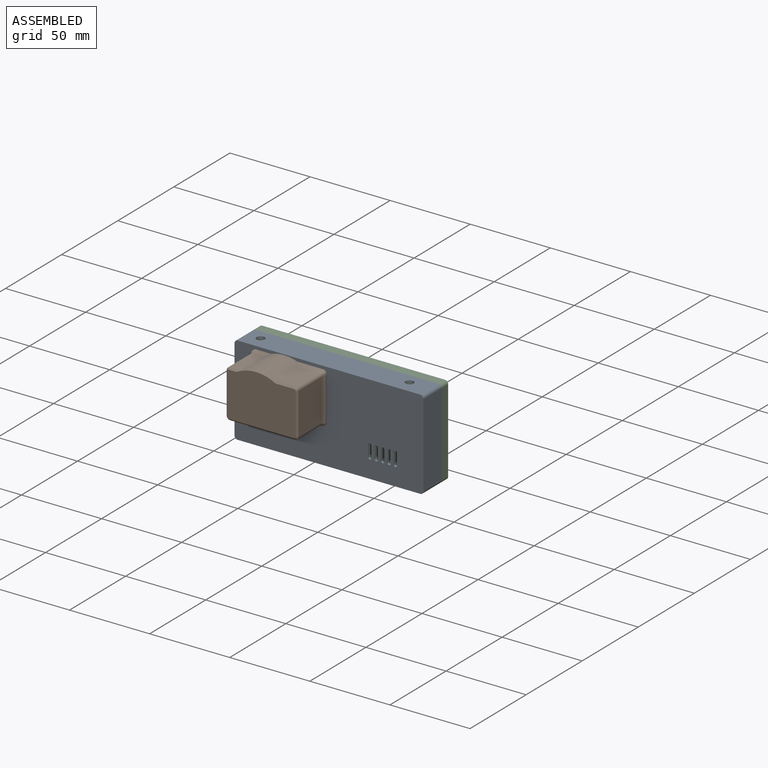
[diagram: assembled view]
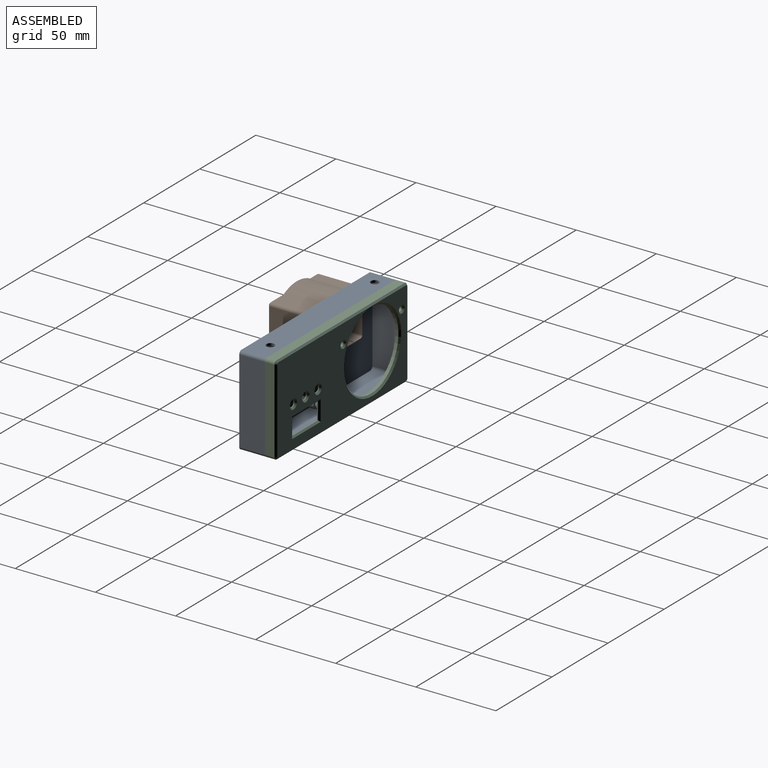
[diagram: assembled view, second angle]
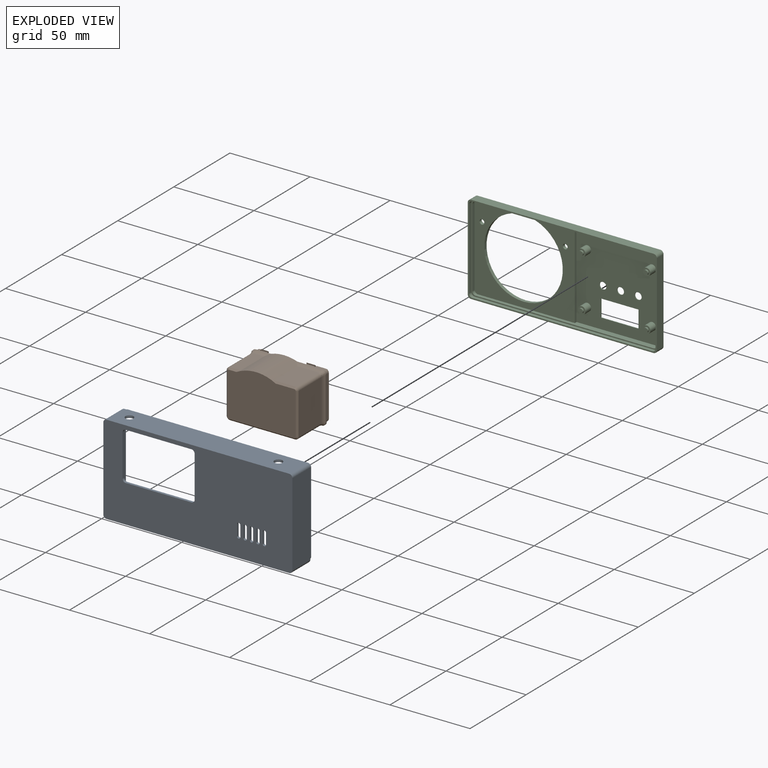
[diagram: exploded view]
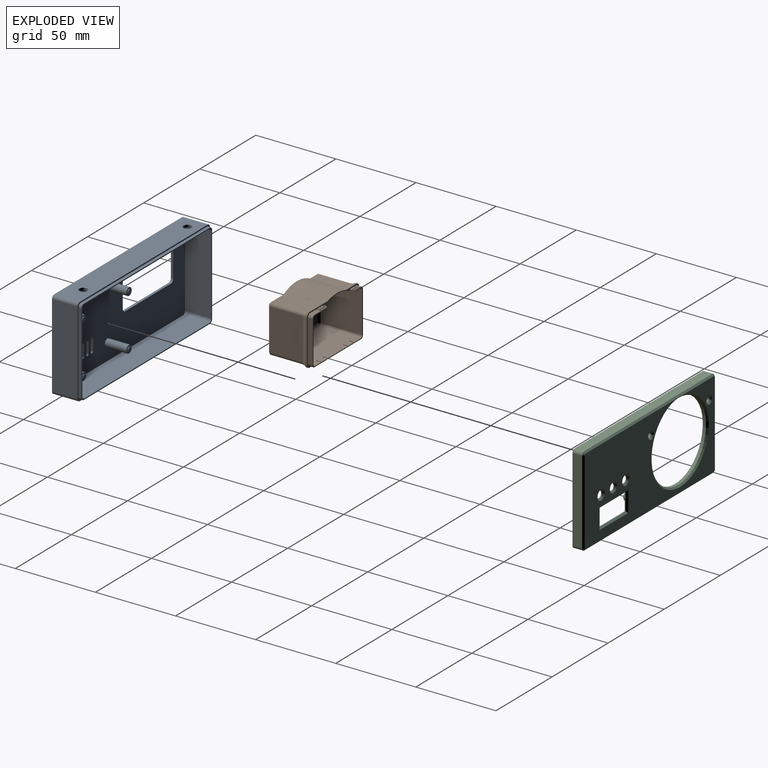
[diagram: exploded view, second angle]
ASSEMBLY  parts=3 mates=2
PART A: 94 faces, bbox 118x17.9x56 mm
  f0: plane 118x56mm, normal (0,-1,0), area 5169.9mm2, adj f2,f3,f4,f5,f19,f20,f21,f22
  f1: plane 115x53mm, normal (0,1,0), area 4584.5mm2, adj f6,f7,f8,f9,f11,f13,f15,f17
  f2: plane 114x16mm, normal (0,0,-1), area 1824mm2, adj f0,f10,f73,f74
  f3: plane 52x16mm, normal (1,0,0), area 832mm2, adj f0,f10,f74,f75
  f4: plane 114x16mm, normal (0,0,1), area 1784.7mm2, adj f0,f10,f72,f75,f84,f85
  f5: plane 52x16mm, normal (-1,0,0), area 832mm2, adj f0,f10,f72,f73
  f6: plane 49x16.4mm, normal (-1,0,0), area 803.6mm2, adj f1,f63,f68,f71
  f7: plane 111x16.4mm, normal (0,0,1), area 1820.4mm2, adj f1,f63,f68,f69
  f8: plane 49x16.4mm, normal (1,0,0), area 803.6mm2, adj f1,f63,f69,f70
  f9: plane 111x16.4mm, normal (0,0,-1), area 1781.1mm2, adj f1,f63,f70,f71,f84,f85
  f10: plane 118x56mm, normal (0,1,0), area 287.5mm2, adj f2,f3,f4,f5,f59,f60,f61,f62
  f11: cylinder r=2.4mm len=13.5mm, axis (0,1,0), area 203.6mm2, adj f1,f12
  f12: plane 4.8x4.8mm, normal (0,1,0), area 11.9mm2, adj f11,f86
  f13: cylinder r=2.4mm len=13.5mm, axis (0,1,0), area 203.6mm2, adj f1,f14
  f14: plane 4.8x4.8mm, normal (0,1,0), area 11.9mm2, adj f13,f88
  f15: cylinder r=2.4mm len=13.5mm, axis (0,1,0), area 203.6mm2, adj f1,f16
  f16: plane 4.8x4.8mm, normal (0,1,0), area 11.9mm2, adj f15,f90
  f17: cylinder r=2.4mm len=13.5mm, axis (0,1,0), area 203.6mm2, adj f1,f18
  f18: plane 4.8x4.8mm, normal (0,1,0), area 11.9mm2, adj f17,f92
  f19: plane 1.5x0.08mm, normal (0,0,-1), area 0.1mm2, adj f0,f1,f20,f26
  f20: cylinder r=1mm len=1.5mm, axis (0,-1,0), area 2.4mm2, adj f0,f1,f19,f21
  f21: plane 6.87x1.5mm, normal (1,0,0), area 10.3mm2, adj f0,f1,f20,f22
  f22: cylinder r=1mm len=1.5mm, axis (0,-1,0), area 2.4mm2, adj f0,f1,f21,f23
  f23: plane 1.5x0.08mm, normal (0,0,1), area 0.1mm2, adj f0,f1,f22,f24
  f24: cylinder r=1mm len=1.5mm, axis (0,-1,0), area 2.4mm2, adj f0,f1,f23,f25
  f25: plane 6.87x1.5mm, normal (-1,0,0), area 10.3mm2, adj f0,f1,f24,f26
  f26: cylinder r=1mm len=1.5mm, axis (0,-1,0), area 2.4mm2, adj f0,f1,f19,f25
  f27: plane 1.5x0.08mm, normal (0,0,-1), area 0.1mm2, adj f0,f1,f28,f34
  f28: cylinder r=1mm len=1.5mm, axis (0,-1,0), area 2.4mm2, adj f0,f1,f27,f29
  f29: plane 6.87x1.5mm, normal (1,0,0), area 10.3mm2, adj f0,f1,f28,f30
  f30: cylinder r=1mm len=1.5mm, axis (0,-1,0), area 2.4mm2, adj f0,f1,f29,f31
  f31: plane 1.5x0.08mm, normal (0,0,1), area 0.1mm2, adj f0,f1,f30,f32
  f32: cylinder r=1mm len=1.5mm, axis (0,-1,0), area 2.4mm2, adj f0,f1,f31,f33
  f33: plane 6.87x1.5mm, normal (-1,0,0), area 10.3mm2, adj f0,f1,f32,f34
  f34: cylinder r=1mm len=1.5mm, axis (0,-1,0), area 2.4mm2, adj f0,f1,f27,f33
  f35: plane 1.5x0.08mm, normal (0,0,-1), area 0.1mm2, adj f0,f1,f36,f42
  f36: cylinder r=1mm len=1.5mm, axis (0,-1,0), area 2.4mm2, adj f0,f1,f35,f37
  f37: plane 6.87x1.5mm, normal (1,0,0), area 10.3mm2, adj f0,f1,f36,f38
  f38: cylinder r=1mm len=1.5mm, axis (0,-1,0), area 2.4mm2, adj f0,f1,f37,f39
  f39: plane 1.5x0.08mm, normal (0,0,1), area 0.1mm2, adj f0,f1,f38,f40
  f40: cylinder r=1mm len=1.5mm, axis (0,-1,0), area 2.4mm2, adj f0,f1,f39,f41
  f41: plane 6.87x1.5mm, normal (-1,0,0), area 10.3mm2, adj f0,f1,f40,f42
  f42: cylinder r=1mm len=1.5mm, axis (0,-1,0), area 2.4mm2, adj f0,f1,f35,f41
  f43: plane 1.5x0.08mm, normal (0,0,-1), area 0.1mm2, adj f0,f1,f44,f50
  f44: cylinder r=1mm len=1.5mm, axis (0,-1,0), area 2.4mm2, adj f0,f1,f43,f45
  f45: plane 6.87x1.5mm, normal (1,0,0), area 10.3mm2, adj f0,f1,f44,f46
  f46: cylinder r=1mm len=1.5mm, axis (0,-1,0), area 2.4mm2, adj f0,f1,f45,f47
  f47: plane 1.5x0.08mm, normal (0,0,1), area 0.1mm2, adj f0,f1,f46,f48
  f48: cylinder r=1mm len=1.5mm, axis (0,-1,0), area 2.4mm2, adj f0,f1,f47,f49
  f49: plane 6.87x1.5mm, normal (-1,0,0), area 10.3mm2, adj f0,f1,f48,f50
  f50: cylinder r=1mm len=1.5mm, axis (0,-1,0), area 2.4mm2, adj f0,f1,f43,f49
  f51: plane 1.5x0.08mm, normal (0,0,-1), area 0.1mm2, adj f0,f1,f52,f58
  f52: cylinder r=1mm len=1.5mm, axis (0,-1,0), area 2.4mm2, adj f0,f1,f51,f53
  f53: plane 6.87x1.5mm, normal (1,0,0), area 10.3mm2, adj f0,f1,f52,f54
  f54: cylinder r=1mm len=1.5mm, axis (0,-1,0), area 2.4mm2, adj f0,f1,f53,f55
  f55: plane 1.5x0.08mm, normal (0,0,1), area 0.1mm2, adj f0,f1,f54,f56
  f56: cylinder r=1mm len=1.5mm, axis (0,-1,0), area 2.4mm2, adj f0,f1,f55,f57
  f57: plane 6.87x1.5mm, normal (-1,0,0), area 10.3mm2, adj f0,f1,f56,f58
  f58: cylinder r=1mm len=1.5mm, axis (0,-1,0), area 2.4mm2, adj f0,f1,f51,f57
  f59: plane 112.4x1.9mm, normal (0,0,1), area 213.6mm2, adj f10,f63,f64,f67
  f60: plane 50.3x1.9mm, normal (1,0,0), area 95.6mm2, adj f10,f63,f64,f65
  f61: plane 112.4x1.9mm, normal (0,0,-1), area 213.6mm2, adj f10,f63,f65,f66
  f62: plane 50.3x1.9mm, normal (-1,0,0), area 95.6mm2, adj f10,f63,f66,f67
  f63: plane 116.4x54.3mm, normal (0,1,0), area 225.5mm2, adj f6,f7,f8,f9,f59,f60,f61,f62
  f64: cylinder r=2mm len=2mm, axis (0,1,0), area 6mm2, adj f10,f59,f60,f63
  f65: cylinder r=2mm len=2mm, axis (0,-1,0), area 6mm2, adj f10,f60,f61,f63
  f66: cylinder r=2mm len=2mm, axis (0,1,0), area 6mm2, adj f10,f61,f62,f63
  f67: cylinder r=2mm len=2mm, axis (0,-1,0), area 6mm2, adj f10,f59,f62,f63
  f68: cylinder r=2mm len=16.4mm, axis (0,1,0), area 51.5mm2, adj f1,f6,f7,f63
  f69: cylinder r=2mm len=16.4mm, axis (0,-1,0), area 51.5mm2, adj f1,f7,f8,f63
  f70: cylinder r=2mm len=16.4mm, axis (0,1,0), area 51.5mm2, adj f1,f8,f9,f63
  f71: cylinder r=2mm len=16.4mm, axis (0,-1,0), area 51.5mm2, adj f1,f6,f9,f63
  f72: cylinder r=2mm len=16mm, axis (0,1,0), area 50.3mm2, adj f0,f4,f5,f10
  f73: cylinder r=2mm len=16mm, axis (0,-1,0), area 50.3mm2, adj f0,f2,f5,f10
  f74: cylinder r=2mm len=16mm, axis (0,1,0), area 50.3mm2, adj f0,f2,f3,f10
  f75: cylinder r=2mm len=16mm, axis (0,-1,0), area 50.3mm2, adj f0,f3,f4,f10
  f76: plane 26x1.5mm, normal (-1,0,0), area 39mm2, adj f0,f1,f77,f83
  f77: cylinder r=2mm len=2mm, axis (0,-1,0), area 4.7mm2, adj f0,f1,f76,f78
  f78: plane 41x1.5mm, normal (0,0,-1), area 61.5mm2, adj f0,f1,f77,f79
  f79: cylinder r=2mm len=2mm, axis (0,-1,0), area 4.7mm2, adj f0,f1,f78,f80
  f80: plane 26x1.5mm, normal (1,0,0), area 39mm2, adj f0,f1,f79,f81
  f81: cylinder r=2mm len=2mm, axis (0,-1,0), area 4.7mm2, adj f0,f1,f80,f82
  f82: plane 41x1.5mm, normal (0,0,1), area 61.5mm2, adj f0,f1,f81,f83
  f83: cylinder r=2mm len=2mm, axis (0,-1,0), area 4.7mm2, adj f0,f1,f76,f82
  f84: cylinder r=2.5mm len=5mm, axis (0,0,1), area 23.6mm2, adj f4,f9
  f85: cylinder r=2.5mm len=5mm, axis (0,0,1), area 23.6mm2, adj f4,f9
  f86: cylinder r=1.4mm len=2.8mm, axis (0,1,0), area 4.4mm2, adj f12,f87
  f87: plane 2.8x2.8mm, normal (0,1,0), area 6.2mm2, adj f86
  f88: cylinder r=1.4mm len=2.8mm, axis (0,1,0), area 4.4mm2, adj f14,f89
  f89: plane 2.8x2.8mm, normal (0,1,0), area 6.2mm2, adj f88
  f90: cylinder r=1.4mm len=2.8mm, axis (0,1,0), area 4.4mm2, adj f16,f91
  f91: plane 2.8x2.8mm, normal (0,1,0), area 6.2mm2, adj f90
  f92: cylinder r=1.4mm len=2.8mm, axis (0,1,0), area 4.4mm2, adj f18,f93
  f93: plane 2.8x2.8mm, normal (0,1,0), area 6.2mm2, adj f92
PART B: 132 faces, bbox 46.5x32.8x28 mm
  f0: plane 4x0.5mm, normal (0,0,1), area 2mm2, adj f1,f2,f63,f94,f95
  f1: plane 26x6.22mm, normal (0,1,0), area 156.7mm2, adj f0,f20,f39,f40,f46,f63,f95,f110
  f2: plane 4x1.19mm, normal (0,-0.77,0.64), area 6.2mm2, adj f0,f94,f95,f96
  f3: cylinder r=25mm len=0.02mm, axis (0,0,-1), area 0mm2, adj f5,f46,f129
  f4: plane 0.02x0mm, normal (0,-1,0), area 0mm2, adj f5,f46,f129
  f5: cylinder r=0.3mm len=0.65mm, axis (0,-1,0), area 0.3mm2, adj f3,f4,f6,f63,f94,f129
  f6: plane 5.7x2.76mm, normal (0,-1,0), area 9.1mm2, adj f5,f46,f62,f93,f94,f95,f98,f130
  f7: plane 5.6x1.7mm, normal (0,1,0), area 8.5mm2, adj f46,f89,f90,f91,f106,f108
  f8: plane 5.7x2.76mm, normal (0,1,0), area 14.9mm2, adj f46,f60,f97,f108,f109
  f9: plane 5.6x1.7mm, normal (0,1,0), area 8.5mm2, adj f46,f85,f86,f87,f102,f104
  f10: plane 18.2x2.76mm, normal (0,1,0), area 48.6mm2, adj f22,f46,f104,f105,f106,f107
  f11: plane 26x13.02mm, normal (0,1,0), area 330.2mm2, adj f18,f19,f39,f45,f46,f81,f83,f99
  f12: plane 40.4x26mm, normal (0,-1,0), area 1043.4mm2, adj f15,f16,f17,f19,f20,f42,f43,f85
  f13: plane 5.59x1.7mm, normal (0,-1,0), area 8.5mm2, adj f46,f81,f82,f83,f100,f101,f128
  f14: plane 5.7x2.76mm, normal (0,-1,0), area 14.9mm2, adj f26,f46,f57,f99,f100
  f15: plane 5x0.5mm, normal (0,0,1), area 2.5mm2, adj f12,f21,f89,f91
  f16: plane 17.6x0.5mm, normal (0,0,1), area 8.8mm2, adj f12,f22,f105,f107
  f17: plane 5x0.5mm, normal (0,0,1), area 2.5mm2, adj f12,f23,f85,f87
  f18: plane 5x0.5mm, normal (0,0,1), area 2.5mm2, adj f11,f25,f81,f83
  f19: plane 29.4x7.4mm, normal (0,0,1), area 27.1mm2, adj f11,f12,f24,f26,f43,f44,f45,f57
  f20: plane 29.4x7.4mm, normal (0,0,1), area 24.8mm2, adj f1,f12,f40,f41,f42,f60,f61,f62
  f21: plane 5x1.19mm, normal (0,0.77,0.64), area 7.8mm2, adj f15,f89,f91,f92
  f22: plane 17.6x0.24mm, normal (0,0.77,0.64), area 5.5mm2, adj f10,f16,f105,f107
  f23: plane 5x1.19mm, normal (0,0.77,0.64), area 7.8mm2, adj f17,f85,f87,f88
  f24: plane 6.27x0.24mm, normal (0,0.77,0.64), area 1.9mm2, adj f19,f27,f59,f103
  f25: plane 5x1.19mm, normal (0,-0.77,0.64), area 7.8mm2, adj f18,f81,f83,f84
  f26: plane 6.27x0.24mm, normal (0,-0.77,0.64), area 1.9mm2, adj f14,f19,f57,f99
  f27: plane 5.7x2.76mm, normal (0,1,0), area 14.9mm2, adj f24,f46,f59,f102,f103
  f28: plane 42.8x31mm, normal (0,0,-1), area 1241.9mm2, adj f29,f119,f120,f121,f122,f123,f124,f125
  f29: cylinder r=25mm len=25mm, axis (0,0,-1), area 522.6mm2, adj f28,f30,f38,f46,f48,f56,f64,f80
  f30: plane 16.15x1mm, normal (0,-1,0), area 16.2mm2, adj f29,f31,f46,f79,f80
  f31: cylinder r=2.2mm len=2.2mm, axis (0,0,-1), area 3.5mm2, adj f30,f32,f46,f78
  f32: plane 27x1mm, normal (1,0,0), area 27mm2, adj f31,f33,f46,f75,f76,f77
  f33: cylinder r=2.2mm len=2.2mm, axis (0,0,-1), area 3.5mm2, adj f32,f34,f46,f74
  f34: plane 42x1mm, normal (0,1,0), area 42mm2, adj f33,f35,f46,f71,f72,f73
  f35: cylinder r=2.2mm len=2.2mm, axis (0,0,-1), area 3.5mm2, adj f34,f36,f46,f70
  f36: plane 27x1mm, normal (-1,0,0), area 27mm2, adj f35,f37,f46,f67,f68,f69
  f37: cylinder r=2.2mm len=2.2mm, axis (0,0,-1), area 3.5mm2, adj f36,f38,f46,f66
  f38: plane 9.35x1mm, normal (0,-1,0), area 9.4mm2, adj f29,f37,f46,f64,f65
  f39: cylinder r=24.5mm len=24.9mm, axis (0,0,-1), area 527mm2, adj f1,f11,f46,f47,f110,f118
  f40: cylinder r=1.5mm len=26mm, axis (0,0,-1), area 61.3mm2, adj f1,f20,f41,f111
  f41: plane 26x25.4mm, normal (1,0,0), area 660.4mm2, adj f20,f40,f42,f112
  f42: cylinder r=1.5mm len=26mm, axis (0,0,-1), area 61.3mm2, adj f12,f20,f41,f113
  f43: cylinder r=1.5mm len=26mm, axis (0,0,-1), area 61.3mm2, adj f12,f19,f44,f115
  f44: plane 26x25.4mm, normal (-1,0,0), area 660.4mm2, adj f19,f43,f45,f116
  f45: cylinder r=1.5mm len=26mm, axis (0,0,-1), area 61.3mm2, adj f11,f19,f44,f117
  f46: plane 46.4x32.8mm, normal (0,0,1), area 119.2mm2, adj f1,f3,f4,f6,f7,f8,f9,f10
  f47: plane 41.4x29.8mm, normal (0,0,1), area 1150mm2, adj f39,f110,f111,f112,f113,f114,f115,f116
  f48: plane 20.29x6.75mm, normal (0,-1,0), area 136.8mm2, adj f29,f49,f64,f119
  f49: cylinder r=2mm len=20.29mm, axis (0,0,-1), area 63mm2, adj f48,f50,f65,f66,f67,f120
  f50: plane 25.8x20.29mm, normal (-1,0,0), area 523.4mm2, adj f49,f51,f68,f121
  f51: cylinder r=2mm len=20.29mm, axis (0,0,-1), area 63mm2, adj f50,f52,f69,f70,f71,f122
  f52: plane 40.8x20.29mm, normal (0,1,0), area 827.7mm2, adj f51,f53,f72,f123
  f53: cylinder r=2mm len=20.29mm, axis (0,0,-1), area 63mm2, adj f52,f54,f73,f74,f75,f124
  f54: plane 25.8x20.29mm, normal (1,0,0), area 523.4mm2, adj f53,f55,f76,f125
  f55: cylinder r=2mm len=20.29mm, axis (0,0,-1), area 63mm2, adj f54,f56,f77,f78,f79,f126
  f56: plane 20.29x13.55mm, normal (0,-1,0), area 274.8mm2, adj f29,f55,f80,f127
  f57: cylinder r=2mm len=3mm, axis (0,0,-1), area 9.3mm2, adj f14,f19,f26,f46,f58
  f58: plane 25.8x3mm, normal (1,0,0), area 77.4mm2, adj f19,f46,f57,f59
  f59: cylinder r=2mm len=3mm, axis (0,0,-1), area 9.3mm2, adj f19,f24,f27,f46,f58
  f60: cylinder r=2mm len=3mm, axis (0,0,-1), area 9.3mm2, adj f8,f20,f46,f61,f97
  f61: plane 25.8x3mm, normal (-1,0,0), area 77.4mm2, adj f20,f46,f60,f62
  f62: cylinder r=2mm len=3mm, axis (0,0,-1), area 9.3mm2, adj f6,f20,f46,f61,f98
  f63: cylinder r=25mm len=3mm, axis (0,0,-1), area 0.3mm2, adj f0,f1,f5,f46,f94
  f64: cylinder r=5mm len=8.75mm, axis (-1,0,0), area 21.2mm2, adj f29,f38,f48,f65
  f65: bspline ~2.79x1.33mm, area 1.1mm2, adj f38,f49,f64,f66
  f66: bspline ~3.07x2.87mm, area 9.2mm2, adj f37,f49,f65,f67
  f67: bspline ~2.9x1.75mm, area 1.1mm2, adj f36,f49,f66,f68
  f68: cylinder r=5mm len=25.8mm, axis (0,1,0), area 74mm2, adj f36,f50,f67,f69
  f69: bspline ~2.79x1.33mm, area 1.1mm2, adj f36,f51,f68,f70
  f70: bspline ~3.07x2.87mm, area 9.2mm2, adj f35,f51,f69,f71
  f71: bspline ~2.9x1.75mm, area 1.1mm2, adj f34,f51,f70,f72
  f72: cylinder r=5mm len=40.8mm, axis (-1,0,0), area 117mm2, adj f34,f52,f71,f73
  f73: bspline ~2.9x1.75mm, area 1.1mm2, adj f34,f53,f72,f74
  f74: bspline ~3.07x2.87mm, area 9.2mm2, adj f33,f53,f73,f75
  f75: bspline ~2.9x1.75mm, area 1.1mm2, adj f32,f53,f74,f76
  f76: cylinder r=5mm len=25.8mm, axis (0,1,0), area 74mm2, adj f32,f54,f75,f77
  f77: bspline ~2.9x1.75mm, area 1.1mm2, adj f32,f55,f76,f78
  f78: bspline ~3.07x2.87mm, area 9.2mm2, adj f31,f55,f77,f79
  f79: bspline ~2.9x1.75mm, area 1.1mm2, adj f30,f55,f78,f80
  f80: cylinder r=5mm len=15.55mm, axis (1,0,0), area 40.7mm2, adj f29,f30,f56,f79
  f81: plane 2.7x1.5mm, normal (1,0,0), area 2.3mm2, adj f11,f13,f18,f25,f82,f84,f100
  f82: plane 5x0.8mm, normal (0,0,-1), area 4mm2, adj f13,f81,f83,f84
  f83: plane 2.7x1.5mm, normal (-1,0,0), area 2.3mm2, adj f11,f13,f18,f25,f82,f84,f101
  f84: plane 5x0.11mm, normal (0,-1,0), area 0.5mm2, adj f25,f81,f82,f83
  f85: plane 2.7x1.5mm, normal (1,0,0), area 2.3mm2, adj f9,f12,f17,f23,f86,f88,f102
  f86: plane 5x0.8mm, normal (0,0,-1), area 4mm2, adj f9,f85,f87,f88
  f87: plane 2.7x1.5mm, normal (-1,0,0), area 2.3mm2, adj f9,f12,f17,f23,f86,f88,f104
  f88: plane 5x0.11mm, normal (0,1,0), area 0.5mm2, adj f23,f85,f86,f87
  f89: plane 2.7x1.5mm, normal (1,0,0), area 2.3mm2, adj f7,f12,f15,f21,f90,f92,f106
  f90: plane 5x0.8mm, normal (0,0,-1), area 4mm2, adj f7,f89,f91,f92
  f91: plane 2.7x1.5mm, normal (-1,0,0), area 2.3mm2, adj f7,f12,f15,f21,f90,f92,f108
  f92: plane 5x0.11mm, normal (0,1,0), area 0.5mm2, adj f21,f89,f90,f91
  f93: plane 4x0.8mm, normal (0,0,-1), area 3.2mm2, adj f6,f94,f95,f96
  f94: plane 2.7x1.45mm, normal (1,0,0), area 2.2mm2, adj f0,f2,f5,f6,f63,f93,f96
  f95: plane 2.7x1.5mm, normal (-1,0,0), area 2.3mm2, adj f0,f1,f2,f6,f93,f96,f131
  f96: plane 4x0.11mm, normal (0,-1,0), area 0.4mm2, adj f2,f93,f94,f95
  f97: plane 6.27x0.24mm, normal (0,0.77,0.64), area 1.9mm2, adj f8,f20,f60,f109
  f98: plane 1.67x0.24mm, normal (0,-0.77,0.64), area 0.4mm2, adj f6,f20,f62,f130
  f99: plane 2.7x0.7mm, normal (-1,0,0), area 1.9mm2, adj f11,f14,f19,f26,f100
  f100: cylinder r=0.3mm len=0.7mm, axis (0,-1,0), area 0.7mm2, adj f11,f13,f14,f81,f99
  f101: cylinder r=0.3mm len=0.7mm, axis (0,-1,0), area 0.3mm2, adj f11,f13,f83,f128
  f102: cylinder r=0.3mm len=0.7mm, axis (0,-1,0), area 0.7mm2, adj f9,f12,f27,f85,f103
  f103: plane 2.7x0.7mm, normal (-1,0,0), area 1.9mm2, adj f12,f19,f24,f27,f102
  f104: cylinder r=0.3mm len=0.7mm, axis (0,-1,0), area 0.7mm2, adj f9,f10,f12,f87,f105
  f105: plane 2.7x0.7mm, normal (1,0,0), area 1.9mm2, adj f10,f12,f16,f22,f104
  f106: cylinder r=0.3mm len=0.7mm, axis (0,-1,0), area 0.7mm2, adj f7,f10,f12,f89,f107
  f107: plane 2.7x0.7mm, normal (-1,0,0), area 1.9mm2, adj f10,f12,f16,f22,f106
  f108: cylinder r=0.3mm len=0.7mm, axis (0,-1,0), area 0.7mm2, adj f7,f8,f12,f91,f109
  f109: plane 2.7x0.7mm, normal (1,0,0), area 1.9mm2, adj f8,f12,f20,f97,f108
  f110: plane 6.27x1.04mm, normal (0,0.71,0.71), area 7.4mm2, adj f1,f39,f47,f111
  f111: cone r=1.5mm half-angle=45deg, axis (0,0,1), area 2.2mm2, adj f40,f47,f110,f112
  f112: plane 25.4x1mm, normal (0.71,0,0.71), area 35.9mm2, adj f41,f47,f111,f113
  f113: cone r=1.5mm half-angle=45deg, axis (0,0,1), area 2.2mm2, adj f42,f47,f112,f114
  f114: plane 40.4x1mm, normal (0,-0.71,0.71), area 57.1mm2, adj f12,f47,f113,f115
  f115: cone r=1.5mm half-angle=45deg, axis (0,0,1), area 2.2mm2, adj f43,f47,f114,f116
  f116: plane 25.4x1mm, normal (-0.71,0,0.71), area 35.9mm2, adj f44,f47,f115,f117
  f117: cone r=1.5mm half-angle=45deg, axis (0,0,1), area 2.2mm2, adj f45,f47,f116,f118
  f118: plane 13.07x1.04mm, normal (0,0.71,0.71), area 17mm2, adj f11,f39,f47,f117
  f119: plane 6.79x1.04mm, normal (0,-0.71,-0.71), area 8.1mm2, adj f28,f29,f48,f120
  f120: cone r=2mm half-angle=45deg, axis (0,0,1), area 3.3mm2, adj f28,f49,f119,f121
  f121: plane 25.8x1mm, normal (-0.71,0,-0.71), area 36.5mm2, adj f28,f50,f120,f122
  f122: cone r=2mm half-angle=45deg, axis (0,0,1), area 3.3mm2, adj f28,f51,f121,f123
  f123: plane 40.8x1mm, normal (0,0.71,-0.71), area 57.7mm2, adj f28,f52,f122,f124
  f124: cone r=2mm half-angle=45deg, axis (0,0,1), area 3.3mm2, adj f28,f53,f123,f125
  f125: plane 25.8x1mm, normal (0.71,0,-0.71), area 36.5mm2, adj f28,f54,f124,f126
  f126: cone r=2mm half-angle=45deg, axis (0,0,1), area 3.3mm2, adj f28,f55,f125,f127
  f127: plane 13.59x1.04mm, normal (0,-0.71,-0.71), area 17.7mm2, adj f28,f29,f56,f126
  f128: plane 0.7x0mm, normal (-1,0,0), area 0mm2, adj f11,f13,f46,f101
  f129: plane 0.49x0mm, normal (1,0,0), area 0mm2, adj f3,f4,f5,f46
  f130: plane 2.7x0.7mm, normal (1,0,0), area 1.9mm2, adj f1,f6,f20,f98,f131
  f131: cylinder r=0.3mm len=0.7mm, axis (0,-1,0), area 0.7mm2, adj f1,f6,f95,f130
PART C: 74 faces, bbox 118x7.5x56 mm
  f0: plane 49x2mm, normal (1,0,0), area 98mm2, adj f22,f43,f48,f51
  f1: plane 111x3.5mm, normal (0,0,-1), area 297.8mm2, adj f5,f21,f22,f43,f48,f49
  f2: plane 49x3.5mm, normal (-1,0,0), area 171.5mm2, adj f5,f43,f49,f50
  f3: plane 111x3.5mm, normal (0,0,1), area 297.7mm2, adj f5,f21,f22,f43,f50,f51
  f4: plane 118x56mm, normal (0,-1,0), area 275.8mm2, adj f9,f10,f11,f18,f39,f40,f41,f42
  f5: plane 53x52.5mm, normal (0,-1,0), area 2410mm2, adj f1,f2,f3,f6,f7,f8,f12,f13
  f6: plane 10.84x0.5mm, normal (1,0,0), area 5.4mm2, adj f5,f7,f14,f62
  f7: plane 23.5x0.5mm, normal (0,0,-1), area 11.8mm2, adj f5,f6,f8,f63
  f8: plane 10.84x0.5mm, normal (-1,0,0), area 5.4mm2, adj f5,f7,f14,f65
  f9: plane 114x6mm, normal (0,0,-1), area 684mm2, adj f4,f53,f55,f67
  f10: plane 52x6mm, normal (1,0,0), area 312mm2, adj f4,f54,f55,f68
  f11: plane 114x6mm, normal (0,0,1), area 684mm2, adj f4,f52,f54,f72
  f12: cylinder r=2.15mm len=4.3mm, axis (0,1,0), area 6.8mm2, adj f5,f60
  f13: cylinder r=2.15mm len=4.3mm, axis (0,1,0), area 6.8mm2, adj f5,f59
  f14: plane 23.5x0.5mm, normal (0,0,1), area 11.8mm2, adj f5,f6,f8,f64
  f15: cylinder r=1.5mm len=3mm, axis (0,1,0), area 18.8mm2, adj f22,f57
  f16: cylinder r=1.5mm len=3mm, axis (0,1,0), area 18.8mm2, adj f22,f56
  f17: cylinder r=24.5mm len=49mm, axis (0,1,0), area 307.9mm2, adj f22,f58
  f18: plane 52x6mm, normal (-1,0,0), area 312mm2, adj f4,f52,f53,f71
  f19: cylinder r=2.15mm len=4.3mm, axis (0,1,0), area 6.8mm2, adj f5,f61
  f20: plane 116x54mm, normal (0,1,0), area 3760mm2, adj f56,f57,f58,f59,f60,f61,f62,f63
  f21: plane 53x1.5mm, normal (1,0,0), area 79.5mm2, adj f1,f3,f5,f22
  f22: plane 62.5x53mm, normal (0,-1,0), area 1410.9mm2, adj f0,f1,f3,f15,f16,f17,f21,f48
  f23: cylinder r=2.4mm len=5mm, axis (0,1,0), area 75.4mm2, adj f5,f24
  f24: plane 4.8x4.8mm, normal (0,-1,0), area 11.9mm2, adj f23,f31
  f25: cylinder r=2.4mm len=5mm, axis (0,1,0), area 75.4mm2, adj f5,f26
  f26: plane 4.8x4.8mm, normal (0,-1,0), area 11.9mm2, adj f25,f33
  f27: cylinder r=2.4mm len=5mm, axis (0,1,0), area 75.4mm2, adj f5,f28
  f28: plane 4.8x4.8mm, normal (0,-1,0), area 11.9mm2, adj f27,f35
  f29: cylinder r=2.4mm len=5mm, axis (0,1,0), area 75.4mm2, adj f5,f30
  f30: plane 4.8x4.8mm, normal (0,-1,0), area 11.9mm2, adj f29,f37
  f31: cylinder r=1.4mm len=2.8mm, axis (0,1,0), area 8.8mm2, adj f24,f32
  f32: plane 2.8x2.8mm, normal (0,-1,0), area 6.2mm2, adj f31
  f33: cylinder r=1.4mm len=2.8mm, axis (0,1,0), area 8.8mm2, adj f26,f34
  f34: plane 2.8x2.8mm, normal (0,-1,0), area 6.2mm2, adj f33
  f35: cylinder r=1.4mm len=2.8mm, axis (0,1,0), area 8.8mm2, adj f28,f36
  f36: plane 2.8x2.8mm, normal (0,-1,0), area 6.2mm2, adj f35
  f37: cylinder r=1.4mm len=2.8mm, axis (0,1,0), area 8.8mm2, adj f30,f38
  f38: plane 2.8x2.8mm, normal (0,-1,0), area 6.2mm2, adj f37
  f39: plane 112.4x2mm, normal (0,0,-1), area 224.8mm2, adj f4,f43,f44,f47
  f40: plane 50.4x2mm, normal (1,0,0), area 100.8mm2, adj f4,f43,f44,f45
  f41: plane 112.4x2mm, normal (0,0,1), area 224.8mm2, adj f4,f43,f45,f46
  f42: plane 50.4x2mm, normal (-1,0,0), area 100.8mm2, adj f4,f43,f46,f47
  f43: plane 116.4x54.4mm, normal (0,-1,0), area 237.2mm2, adj f0,f1,f2,f3,f39,f40,f41,f42
  f44: cylinder r=2mm len=2mm, axis (0,-1,0), area 6.3mm2, adj f4,f39,f40,f43
  f45: cylinder r=2mm len=2mm, axis (0,1,0), area 6.3mm2, adj f4,f40,f41,f43
  f46: cylinder r=2mm len=2mm, axis (0,-1,0), area 6.3mm2, adj f4,f41,f42,f43
  f47: cylinder r=2mm len=2mm, axis (0,1,0), area 6.3mm2, adj f4,f39,f42,f43
  f48: cylinder r=2mm len=2mm, axis (0,1,0), area 6.3mm2, adj f0,f1,f22,f43
  f49: cylinder r=2mm len=3.5mm, axis (0,-1,0), area 11mm2, adj f1,f2,f5,f43
  f50: cylinder r=2mm len=3.5mm, axis (0,1,0), area 11mm2, adj f2,f3,f5,f43
  f51: cylinder r=2mm len=2mm, axis (0,-1,0), area 6.3mm2, adj f0,f3,f22,f43
  f52: cylinder r=2mm len=6mm, axis (0,1,0), area 18.8mm2, adj f4,f11,f18,f73
  f53: cylinder r=2mm len=6mm, axis (0,-1,0), area 18.8mm2, adj f4,f9,f18,f69
  f54: cylinder r=2mm len=6mm, axis (0,-1,0), area 18.8mm2, adj f4,f10,f11,f70
  f55: cylinder r=2mm len=6mm, axis (0,1,0), area 18.8mm2, adj f4,f9,f10,f66
  f56: cone r=2.5mm half-angle=45deg, axis (0,1,0), area 17.8mm2, adj f16,f20
  f57: cone r=2.5mm half-angle=45deg, axis (0,1,0), area 17.8mm2, adj f15,f20
  f58: cone r=25.5mm half-angle=45deg, axis (0,1,0), area 222.1mm2, adj f17,f20
  f59: cone r=3.15mm half-angle=45deg, axis (0,1,0), area 23.5mm2, adj f13,f20
  f60: cone r=3.15mm half-angle=45deg, axis (0,1,0), area 23.5mm2, adj f12,f20
  f61: cone r=3.15mm half-angle=45deg, axis (0,1,0), area 23.5mm2, adj f19,f20
  f62: plane 12.84x1mm, normal (0.71,0.71,0), area 16.7mm2, adj f6,f20,f63,f64
  f63: plane 25.5x1mm, normal (0,0.71,-0.71), area 34.7mm2, adj f7,f20,f62,f65
  f64: plane 25.5x1mm, normal (0,0.71,0.71), area 34.7mm2, adj f14,f20,f62,f65
  f65: plane 12.84x1mm, normal (-0.71,0.71,0), area 16.7mm2, adj f8,f20,f63,f64
  f66: cone r=1mm half-angle=45deg, axis (0,-1,0), area 3.3mm2, adj f20,f55,f67,f68
  f67: plane 114x1mm, normal (0,0.71,-0.71), area 161.2mm2, adj f9,f20,f66,f69
  f68: plane 52x1mm, normal (0.71,0.71,0), area 73.5mm2, adj f10,f20,f66,f70
  f69: cone r=1mm half-angle=45deg, axis (0,-1,0), area 3.3mm2, adj f20,f53,f67,f71
  f70: cone r=1mm half-angle=45deg, axis (0,-1,0), area 3.3mm2, adj f20,f54,f68,f72
  f71: plane 52x1mm, normal (-0.71,0.71,0), area 73.5mm2, adj f18,f20,f69,f73
  f72: plane 114x1mm, normal (0,0.71,0.71), area 161.2mm2, adj f11,f20,f70,f73
  f73: cone r=1mm half-angle=45deg, axis (0,-1,0), area 3.3mm2, adj f20,f52,f71,f72
PLACE A t=(-6.13,-19.63,7.67)mm
PLACE B rot(axis=(-1,0,0),90deg) t=(-62.73,-60.63,18.08)mm
PLACE C t=(-6.13,-12.63,7.68)mm
MATE fastened B.f46 <-> A.f0  axis (0,1,0) through (-83.13,-35.63,3.18)mm
MATE fastened A.f10 <-> C.f4  axis (0,1,0) through (-95.13,-19.63,-20.32)mm
